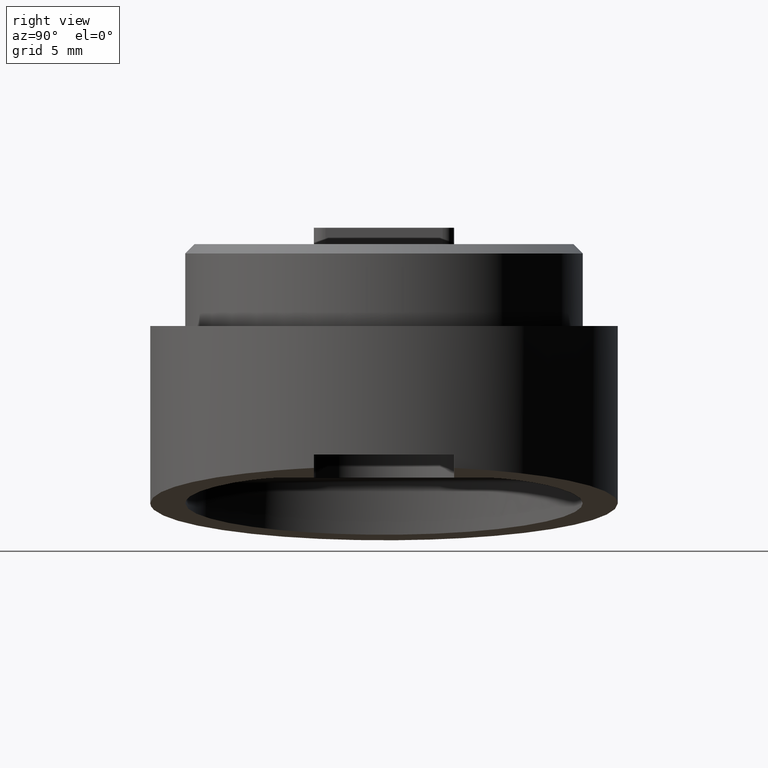
[diagram: clean part render]
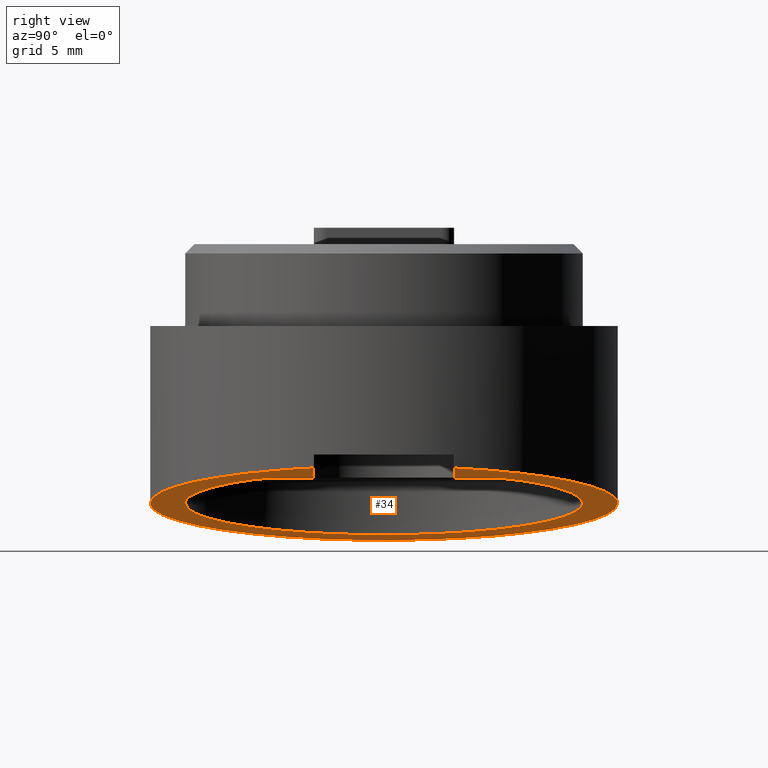
[diagram: same view with one face highlighted and labeled with its STEP entity id]
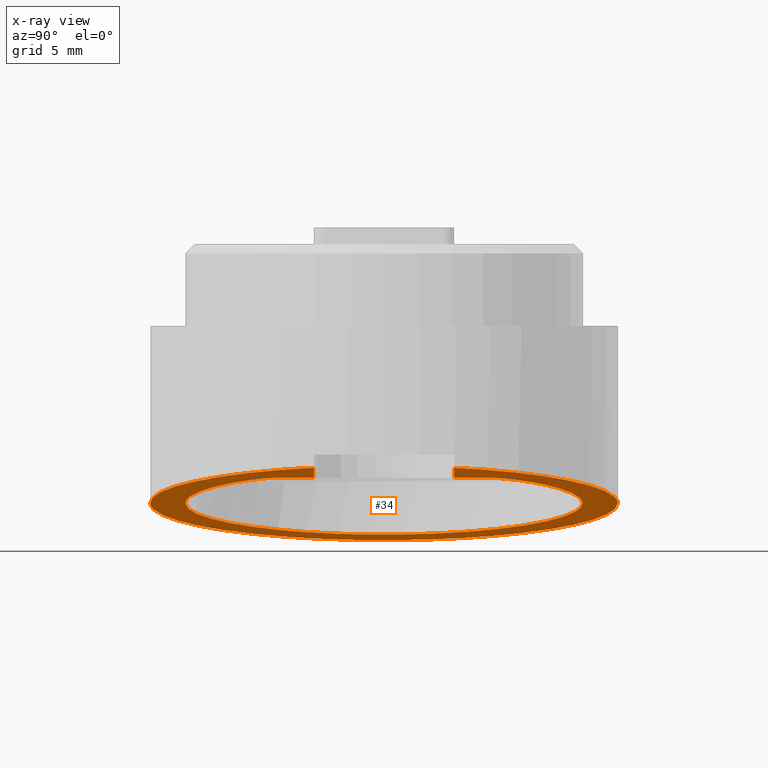
[diagram: x-ray of the same camera — body ghosted, the highlighted face saturated]
A machine part, right view. The second image highlights one B-rep face of the part: STEP entity #34.
The next image is the same camera in x-ray: the body ghosted, the highlighted face saturated — about 0% of this face is hidden behind the body in this view.
In plain terms, the highlighted planar face has unit normal (-0.1564, -0, 0.9877).
Its self-contained STEP definition (entity closure, byte-faithful):
#16 = CARTESIAN_POINT ( 'NONE',  ( 10.36649905344651200, 4.529140288837327300, -10.00000000000004600 ) ) ;
#19 = EDGE_CURVE ( 'NONE', #782, #956, #395, .T. ) ;
#27 = CARTESIAN_POINT ( 'NONE',  ( 10.02055092289331900, 6.713370822116450800, -5.032839621467909200 ) ) ;
#34 = ADVANCED_FACE ( 'NONE', ( #319 ), #385, .F. ) ;
#37 = CARTESIAN_POINT ( 'NONE',  ( 14.25153320973586100, -19.99999999999996400, -9.999999999999982200 ) ) ;
#42 = CARTESIAN_POINT ( 'NONE',  ( 11.08384440324528700, 1.040949779275346600E-015, -8.500000000000030200 ) ) ;
#50 = EDGE_CURVE ( 'NONE', #72, #671, #464, .T. ) ;
#51 = LINE ( 'NONE', #218, #121 ) ;
#55 = EDGE_CURVE ( 'NONE', #329, #272, #864, .T. ) ;
#61 = CARTESIAN_POINT ( 'NONE',  ( 9.572953138044761400, 9.539392014169509400, 3.000000000000014700 ) ) ;
#66 = CARTESIAN_POINT ( 'NONE',  ( 10.19999999999997300, 5.580373939727288700, 6.411663332772028500 ) ) ;
#72 = VERTEX_POINT ( 'NONE', #554 ) ;
#75 =( BOUNDED_CURVE ( )  B_SPLINE_CURVE ( 3, ( #66, #284, #737, #912 ),
 .UNSPECIFIED., .F., .T. ) 
 B_SPLINE_CURVE_WITH_KNOTS ( ( 4, 4 ),
 ( 0.8546075624728680700, 1.570796326794900300 ),
 .UNSPECIFIED. ) 
 CURVE ( )  GEOMETRIC_REPRESENTATION_ITEM ( )  RATIONAL_B_SPLINE_CURVE ( ( 1.000000000000000000, 0.9577109493580684400, 0.9577109493580684400, 1.000000000000000000 ) ) 
 REPRESENTATION_ITEM ( '' )  );
#76 = CARTESIAN_POINT ( 'NONE',  ( 10.00809413991836300, 6.792019854492556500, 4.870005440863972800 ) ) ;
#94 = CARTESIAN_POINT ( 'NONE',  ( 10.75538513231498800, 2.073810219345309400, -8.500000000000037300 ) ) ;
#113 = CARTESIAN_POINT ( 'NONE',  ( 9.999999999999982200, 6.843124242662241800, 4.719934953474860300 ) ) ;
#121 = VECTOR ( 'NONE', #213, 1000.000000000000100 ) ;
#127 = CARTESIAN_POINT ( 'NONE',  ( 10.06598808708730500, 6.426491857864133000, -5.489461703855935700 ) ) ;
#131 = CARTESIAN_POINT ( 'NONE',  ( 11.08384440324528700, 1.224646799147455200E-015, -10.00000000000003600 ) ) ;
#137 = B_SPLINE_CURVE_WITH_KNOTS ( 'NONE', 3,
 ( #666, #113, #859, #200, #339, #76, #214, #177, #157, #390, #185, #242, #1025, #958 ),
 .UNSPECIFIED., .F., .F.,
 ( 4, 2, 2, 2, 2, 2, 4 ),
 ( 0.001795322722670235300, 0.001864081636467085100, 0.001932840550263934600, 0.002070358377857631500, 0.002345394033045024400, 0.002895465343419813300, 0.003995607964169391900 ),
 .UNSPECIFIED. ) ;
#145 = CARTESIAN_POINT ( 'NONE',  ( 11.08384440324528700, 6.779273404243070200E-029, 8.500000000000030200 ) ) ;
#157 = CARTESIAN_POINT ( 'NONE',  ( 10.02754745222465400, 6.669196474453269000, 5.111313885515520500 ) ) ;
#160 = VERTEX_POINT ( 'NONE', #145 ) ;
#161 = CARTESIAN_POINT ( 'NONE',  ( 9.999999999999987600, 6.843124242662368000, -1.479114197289397100E-028 ) ) ;
#177 = CARTESIAN_POINT ( 'NONE',  ( 10.02052718238094400, 6.713520713812442900, 5.032564645043474400 ) ) ;
#185 = CARTESIAN_POINT ( 'NONE',  ( 10.06587270570026100, 6.427220347271339000, 5.488476451503368400 ) ) ;
#200 = CARTESIAN_POINT ( 'NONE',  ( 10.00296946547600100, 6.824375775515251900, 4.785632693356357800 ) ) ;
#203 =( BOUNDED_CURVE ( )  B_SPLINE_CURVE ( 3, ( #831, #338, #16, #915 ),
 .UNSPECIFIED., .F., .T. ) 
 B_SPLINE_CURVE_WITH_KNOTS ( ( 4, 4 ),
 ( 0.3046926540153979100, 1.570796326794899200 ),
 .UNSPECIFIED. ) 
 CURVE ( )  GEOMETRIC_REPRESENTATION_ITEM ( )  RATIONAL_B_SPLINE_CURVE ( ( 1.000000000000000000, 0.8708171832199029800, 0.8708171832199029800, 1.000000000000000000 ) ) 
 REPRESENTATION_ITEM ( '' )  );
#207 = EDGE_CURVE ( 'NONE', #671, #782, #341, .T. ) ;
#213 = DIRECTION ( 'NONE',  ( 0.1564344650402240100, -0.9876883405951387700, -1.041542913924613300E-030 ) ) ;
#214 = CARTESIAN_POINT ( 'NONE',  ( 10.01107037336577800, 6.773228656055946900, 4.911017684324352000 ) ) ;
#218 = CARTESIAN_POINT ( 'NONE',  ( 12.99999999999998000, -12.09813030136368900, -3.000000000000013800 ) ) ;
#230 = CARTESIAN_POINT ( 'NONE',  ( 9.999999999999987600, 6.843124242662365300, 3.000000000000013800 ) ) ;
#242 = CARTESIAN_POINT ( 'NONE',  ( 10.11792319348481200, 6.098586501182063000, 5.913508455220583200 ) ) ;
#258 = CARTESIAN_POINT ( 'NONE',  ( 10.19999999999998700, 5.580373939727288700, -6.411663332772014300 ) ) ;
#261 = CARTESIAN_POINT ( 'NONE',  ( 10.02759331679053300, 6.668906896980985300, -5.111828610535057200 ) ) ;
#272 = VERTEX_POINT ( 'NONE', #651 ) ;
#283 = CARTESIAN_POINT ( 'NONE',  ( 10.19999999999998700, 5.580373939727288700, -6.411663332772014300 ) ) ;
#284 = CARTESIAN_POINT ( 'NONE',  ( 10.44776120749796900, 4.016071240609147900, 7.773149980298456700 ) ) ;
#301 = DIRECTION ( 'NONE',  ( -0.1564344650402240100, 0.9876883405951387700, 1.041542913924613300E-030 ) ) ;
#309 = CARTESIAN_POINT ( 'NONE',  ( 12.99999999999999500, -12.09813030136368900, -10.00000000000004300 ) ) ;
#311 = CARTESIAN_POINT ( 'NONE',  ( 11.08384440324528700, 1.040949779275346600E-015, -8.500000000000030200 ) ) ;
#319 = FACE_OUTER_BOUND ( 'NONE', #892, .T. ) ;
#329 = VERTEX_POINT ( 'NONE', #1069 ) ;
#331 = CARTESIAN_POINT ( 'NONE',  ( 10.00296996276954100, 6.824372635727425700, -4.785634238137365800 ) ) ;
#338 = CARTESIAN_POINT ( 'NONE',  ( 9.788156742984394800, 8.180649927518318900, -7.320524470238806800 ) ) ;
#339 = CARTESIAN_POINT ( 'NONE',  ( 10.00418366947814300, 6.816709593157587400, 4.806924607072193800 ) ) ;
#341 = B_SPLINE_CURVE_WITH_KNOTS ( 'NONE', 3,
 ( #283, #681, #498, #127, #1002, #261, #27, #469, #711, #643, #331, #393, #1065, #1022 ),
 .UNSPECIFIED., .F., .F.,
 ( 4, 2, 2, 2, 2, 2, 4 ),
 ( 1.684583479638719800E-006, 0.001086375186330344300, 0.001628720487755696500, 0.001899893138468372600, 0.002035479463824708400, 0.002103272626502875000, 0.002171065789181041500 ),
 .UNSPECIFIED. ) ;
#344 = AXIS2_PLACEMENT_3D ( 'NONE', #309, #750, #736 ) ;
#379 = ORIENTED_EDGE ( 'NONE', *, *, #1013, .F. ) ;
#385 = PLANE ( 'NONE',  #344 ) ;
#390 = CARTESIAN_POINT ( 'NONE',  ( 10.04963727136149400, 6.529726845419159700, 5.341729082587649600 ) ) ;
#393 = CARTESIAN_POINT ( 'NONE',  ( 10.00094153188761200, 6.837179644280620700, -4.742101029823666100 ) ) ;
#395 = LINE ( 'NONE', #584, #834 ) ;
#418 = ORIENTED_EDGE ( 'NONE', *, *, #19, .F. ) ;
#423 = ORIENTED_EDGE ( 'NONE', *, *, #1049, .F. ) ;
#447 = ORIENTED_EDGE ( 'NONE', *, *, #881, .F. ) ;
#464 =( BOUNDED_CURVE ( )  B_SPLINE_CURVE ( 3, ( #42, #94, #1074, #1005 ),
 .UNSPECIFIED., .F., .F. ) 
 B_SPLINE_CURVE_WITH_KNOTS ( ( 4, 4 ),
 ( 4.712388980384686100, 5.428577744706719200 ),
 .UNSPECIFIED. ) 
 CURVE ( )  GEOMETRIC_REPRESENTATION_ITEM ( )  RATIONAL_B_SPLINE_CURVE ( ( 1.000000000000000000, 0.9577109493580684400, 0.9577109493580684400, 1.000000000000000000 ) ) 
 REPRESENTATION_ITEM ( '' )  );
#469 = CARTESIAN_POINT ( 'NONE',  ( 10.01109320217283000, 6.773084520640811200, -4.911326095055308400 ) ) ;
#473 = CARTESIAN_POINT ( 'NONE',  ( 11.08384440324528700, 6.779273404243070200E-029, 8.500000000000030200 ) ) ;
#498 = CARTESIAN_POINT ( 'NONE',  ( 10.11792007409371900, 6.098606196242278600, -5.913396548790160500 ) ) ;
#499 = VECTOR ( 'NONE', #301, 1000.000000000000100 ) ;
#501 = VERTEX_POINT ( 'NONE', #1061 ) ;
#520 = DIRECTION ( 'NONE',  ( -2.958228394578784500E-030, -5.257788748177172500E-032, 1.000000000000000000 ) ) ;
#544 = ORIENTED_EDGE ( 'NONE', *, *, #690, .F. ) ;
#552 = CARTESIAN_POINT ( 'NONE',  ( 10.19999999999997300, 5.580373939727288700, 6.411663332772028500 ) ) ;
#554 = CARTESIAN_POINT ( 'NONE',  ( 11.08384440324528700, 1.040949779275346600E-015, -8.500000000000030200 ) ) ;
#572 = ORIENTED_EDGE ( 'NONE', *, *, #947, .F. ) ;
#584 = CARTESIAN_POINT ( 'NONE',  ( 9.999999999999987600, 6.843124242662368000, -1.479114197289397100E-028 ) ) ;
#589 = CARTESIAN_POINT ( 'NONE',  ( 9.999999999999973400, 6.843124242662371500, -3.000000000000012000 ) ) ;
#592 = ORIENTED_EDGE ( 'NONE', *, *, #207, .F. ) ;
#593 = VERTEX_POINT ( 'NONE', #131 ) ;
#598 = CARTESIAN_POINT ( 'NONE',  ( 11.08384440324528700, 6.162975822039154700E-029, 10.00000000000003600 ) ) ;
#625 = CARTESIAN_POINT ( 'NONE',  ( 13.77637988876227500, -16.99999999999994700, 8.499999999999968000 ) ) ;
#626 = CARTESIAN_POINT ( 'NONE',  ( 10.36649905344651200, 4.529140288837322900, 10.00000000000004600 ) ) ;
#630 = CARTESIAN_POINT ( 'NONE',  ( 14.25153320973586100, -19.99999999999996400, 9.999999999999976900 ) ) ;
#643 = CARTESIAN_POINT ( 'NONE',  ( 10.00419200194494500, 6.816656984032722000, -4.807070630673941900 ) ) ;
#651 = CARTESIAN_POINT ( 'NONE',  ( 9.572953138044761400, 9.539392014169509400, 3.000000000000014700 ) ) ;
#662 = ORIENTED_EDGE ( 'NONE', *, *, #851, .T. ) ;
#666 = CARTESIAN_POINT ( 'NONE',  ( 9.999999999999985800, 6.843124242662375100, 4.696983138088484100 ) ) ;
#671 = VERTEX_POINT ( 'NONE', #258 ) ;
#678 =( BOUNDED_CURVE ( )  B_SPLINE_CURVE ( 3, ( #473, #625, #835, #311 ),
 .UNSPECIFIED., .F., .T. ) 
 B_SPLINE_CURVE_WITH_KNOTS ( ( 4, 4 ),
 ( 1.570796326794900300, 4.712388980384686100 ),
 .UNSPECIFIED. ) 
 CURVE ( )  GEOMETRIC_REPRESENTATION_ITEM ( )  RATIONAL_B_SPLINE_CURVE ( ( 1.000000000000000000, 0.3333333333333357600, 0.3333333333333357600, 1.000000000000000000 ) ) 
 REPRESENTATION_ITEM ( '' )  );
#681 = CARTESIAN_POINT ( 'NONE',  ( 10.15707990997342200, 5.851360723142392800, -6.175810714552433500 ) ) ;
#690 = EDGE_CURVE ( 'NONE', #1060, #593, #203, .T. ) ;
#707 = ORIENTED_EDGE ( 'NONE', *, *, #50, .F. ) ;
#711 = CARTESIAN_POINT ( 'NONE',  ( 10.00811345707127100, 6.791897890789147000, -4.870293669603225500 ) ) ;
#714 = LINE ( 'NONE', #797, #499 ) ;
#717 = CARTESIAN_POINT ( 'NONE',  ( 11.08384440324528700, 1.224646799147455200E-015, -10.00000000000003600 ) ) ;
#736 = DIRECTION ( 'NONE',  ( 0.1564344650402240100, -0.9876883405951387700, -1.041542913924613300E-030 ) ) ;
#737 = CARTESIAN_POINT ( 'NONE',  ( 10.75538513231498800, 2.073810219345306700, 8.500000000000037300 ) ) ;
#740 = CARTESIAN_POINT ( 'NONE',  ( 9.999999999999928900, 6.843124242662742800, -4.696983138080948800 ) ) ;
#750 = DIRECTION ( 'NONE',  ( -0.9876883405951388800, -0.1564344650402240400, 4.634557818173445100E-030 ) ) ;
#782 = VERTEX_POINT ( 'NONE', #740 ) ;
#791 = EDGE_CURVE ( 'NONE', #1066, #501, #985, .T. ) ;
#797 = CARTESIAN_POINT ( 'NONE',  ( 12.99999999999999500, -12.09813030136364800, 3.000000000000014700 ) ) ;
#814 = VECTOR ( 'NONE', #905, 1000.000000000000000 ) ;
#817 = ORIENTED_EDGE ( 'NONE', *, *, #1038, .T. ) ;
#831 = CARTESIAN_POINT ( 'NONE',  ( 9.572953138044761400, 9.539392014169516500, -3.000000000000013800 ) ) ;
#834 = VECTOR ( 'NONE', #520, 1000.000000000000000 ) ;
#835 = CARTESIAN_POINT ( 'NONE',  ( 13.77637988876227500, -16.99999999999994700, -8.499999999999966200 ) ) ;
#851 = EDGE_CURVE ( 'NONE', #1066, #272, #714, .T. ) ;
#859 = CARTESIAN_POINT ( 'NONE',  ( 10.00093660753749900, 6.837210735403596500, 4.741986193373746200 ) ) ;
#864 =( BOUNDED_CURVE ( )  B_SPLINE_CURVE ( 3, ( #598, #626, #979, #61 ),
 .UNSPECIFIED., .F., .F. ) 
 B_SPLINE_CURVE_WITH_KNOTS ( ( 4, 4 ),
 ( 4.712388980384687000, 5.978492653164187800 ),
 .UNSPECIFIED. ) 
 CURVE ( )  GEOMETRIC_REPRESENTATION_ITEM ( )  RATIONAL_B_SPLINE_CURVE ( ( 1.000000000000000000, 0.8708171832199029800, 0.8708171832199029800, 1.000000000000000000 ) ) 
 REPRESENTATION_ITEM ( '' )  );
#881 = EDGE_CURVE ( 'NONE', #501, #1063, #137, .T. ) ;
#892 = EDGE_LOOP ( 'NONE', ( #933, #662, #1003, #379, #544, #817, #418, #592, #707, #423, #572, #447 ) ) ;
#905 = DIRECTION ( 'NONE',  ( -2.958228394578784500E-030, -5.257788748177172500E-032, 1.000000000000000000 ) ) ;
#907 = CARTESIAN_POINT ( 'NONE',  ( 9.572953138044761400, 9.539392014169516500, -3.000000000000013800 ) ) ;
#912 = CARTESIAN_POINT ( 'NONE',  ( 11.08384440324528700, 6.779273404243070200E-029, 8.500000000000030200 ) ) ;
#915 = CARTESIAN_POINT ( 'NONE',  ( 11.08384440324528700, 1.224646799147455200E-015, -10.00000000000003600 ) ) ;
#929 = CARTESIAN_POINT ( 'NONE',  ( 11.08384440324528700, 6.162975822039154700E-029, 10.00000000000003600 ) ) ;
#933 = ORIENTED_EDGE ( 'NONE', *, *, #791, .F. ) ;
#947 = EDGE_CURVE ( 'NONE', #1063, #160, #75, .T. ) ;
#956 = VERTEX_POINT ( 'NONE', #589 ) ;
#958 = CARTESIAN_POINT ( 'NONE',  ( 10.19999999999997300, 5.580373939727288700, 6.411663332772028500 ) ) ;
#979 = CARTESIAN_POINT ( 'NONE',  ( 9.788156742984394800, 8.180649927518311800, 7.320524470238812100 ) ) ;
#985 = LINE ( 'NONE', #161, #814 ) ;
#1002 = CARTESIAN_POINT ( 'NONE',  ( 10.04974789750755100, 6.529028379421918200, -5.342809866727552800 ) ) ;
#1003 = ORIENTED_EDGE ( 'NONE', *, *, #55, .F. ) ;
#1005 = CARTESIAN_POINT ( 'NONE',  ( 10.19999999999998700, 5.580373939727288700, -6.411663332772014300 ) ) ;
#1013 = EDGE_CURVE ( 'NONE', #593, #329, #1014, .T. ) ;
#1014 =( BOUNDED_CURVE ( )  B_SPLINE_CURVE ( 3, ( #717, #37, #630, #929 ),
 .UNSPECIFIED., .F., .T. ) 
 B_SPLINE_CURVE_WITH_KNOTS ( ( 4, 4 ),
 ( 1.570796326794899200, 4.712388980384687000 ),
 .UNSPECIFIED. ) 
 CURVE ( )  GEOMETRIC_REPRESENTATION_ITEM ( )  RATIONAL_B_SPLINE_CURVE ( ( 1.000000000000000000, 0.3333333333333351500, 0.3333333333333351500, 1.000000000000000000 ) ) 
 REPRESENTATION_ITEM ( '' )  );
#1022 = CARTESIAN_POINT ( 'NONE',  ( 9.999999999999928900, 6.843124242662742800, -4.696983138080948800 ) ) ;
#1025 = CARTESIAN_POINT ( 'NONE',  ( 10.15711560644774300, 5.851135344473585900, 6.176006872270172600 ) ) ;
#1038 = EDGE_CURVE ( 'NONE', #1060, #956, #51, .T. ) ;
#1049 = EDGE_CURVE ( 'NONE', #160, #72, #678, .T. ) ;
#1060 = VERTEX_POINT ( 'NONE', #907 ) ;
#1061 = CARTESIAN_POINT ( 'NONE',  ( 9.999999999999985800, 6.843124242662375100, 4.696983138088484100 ) ) ;
#1063 = VERTEX_POINT ( 'NONE', #552 ) ;
#1065 = CARTESIAN_POINT ( 'NONE',  ( 9.999999999998005200, 6.843124242674727900, -4.719847725149488600 ) ) ;
#1066 = VERTEX_POINT ( 'NONE', #230 ) ;
#1069 = CARTESIAN_POINT ( 'NONE',  ( 11.08384440324528700, 6.162975822039154700E-029, 10.00000000000003600 ) ) ;
#1074 = CARTESIAN_POINT ( 'NONE',  ( 10.44776120749796700, 4.016071240609153200, -7.773149980298454100 ) ) ;